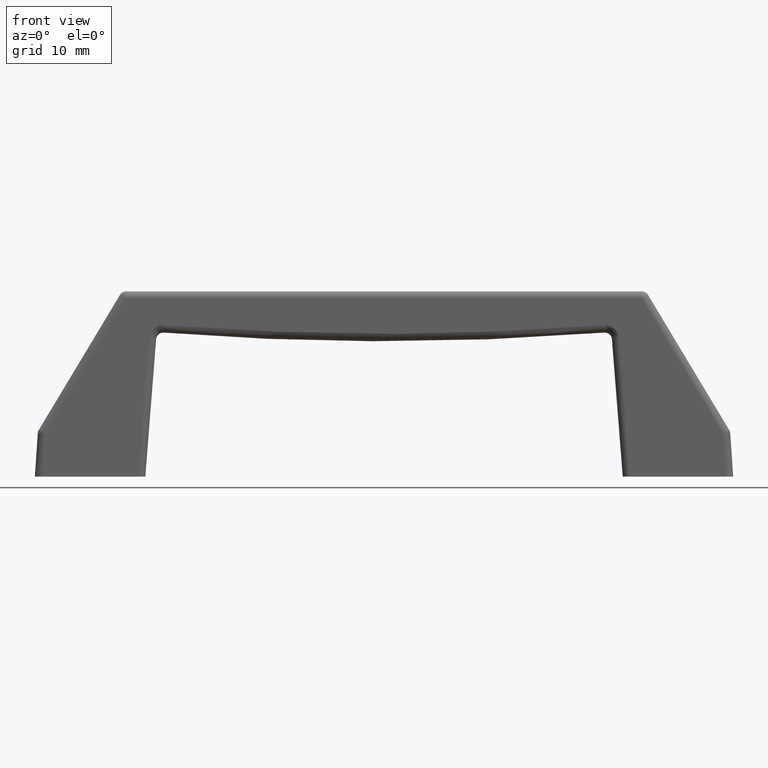
[diagram: clean part render]
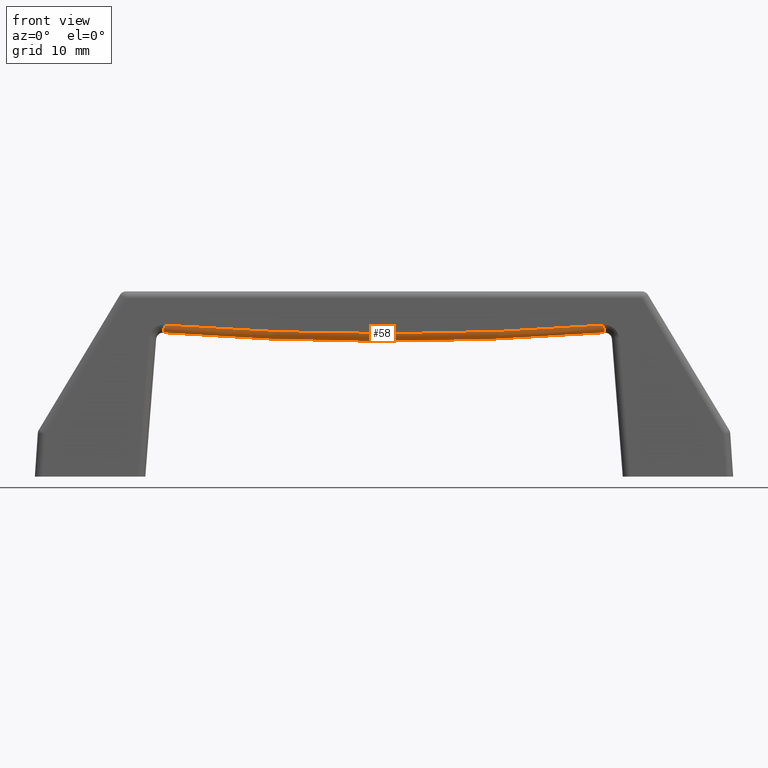
[diagram: same view with one face highlighted and labeled with its STEP entity id]
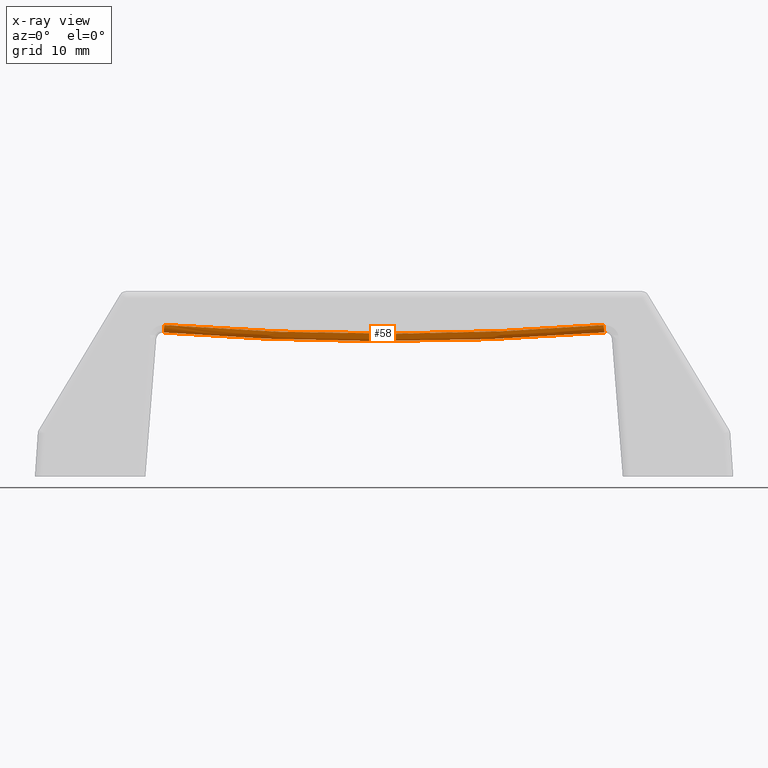
[diagram: x-ray of the same camera — body ghosted, the highlighted face saturated]
A machine part, front view. The second image highlights one B-rep face of the part: STEP entity #58.
The next image is the same camera in x-ray: the body ghosted, the highlighted face saturated — about 0% of this face is hidden behind the body in this view.
In plain terms, the highlighted face is a freeform B-spline surface patch.
Its self-contained STEP definition (entity closure, byte-faithful):
#58=ADVANCED_FACE('',(#301),#300,.T.);
#300=( BOUNDED_SURFACE() B_SPLINE_SURFACE( 3,2,((#1166,#1167,#1168),(#1169,#1170,#1171),(#1172,#1173,#1174),(#1175,#1176,#1177)), .UNSPECIFIED.,.F.,.F.,.F.) B_SPLINE_SURFACE_WITH_KNOTS((4,4),(3,3),(6.20486098314E+00,6.36150963122E+00),(0.00000000000E+00,1.00000000000E+00), .UNSPECIFIED. ) GEOMETRIC_REPRESENTATION_ITEM() RATIONAL_B_SPLINE_SURFACE(((1.00000000000E+00,6.88412846479E-01,1.00000000000E+00),(1.00000000000E+00,6.88335158215E-01,1.00000000000E+00),(1.00000000000E+00,6.88335158215E-01,1.00000000000E+00),(1.00000000000E+00,6.88412846479E-01,1.00000000000E+00))) REPRESENTATION_ITEM('') SURFACE() );
#301=FACE_OUTER_BOUND('',#1178,.T.);
#1166=CARTESIAN_POINT('',(-3.09064850288E+01,-5.88716776104E+00,-5.78901607734E+00));
#1167=CARTESIAN_POINT('',(-3.09107921914E+01,-6.94076949919E+00,-5.78867803020E+00));
#1168=CARTESIAN_POINT('',(-3.08282407629E+01,-6.88579729579E+00,-4.73974590318E+00));
#1169=CARTESIAN_POINT('',(-1.03439453596E+01,-5.97153185651E+00,-7.40286460662E+00));
#1170=CARTESIAN_POINT('',(-1.03430839997E+01,-7.02538083682E+00,-7.40315852888E+00));
#1171=CARTESIAN_POINT('',(-1.03177581511E+01,-6.97016139125E+00,-6.34950874019E+00));
#1172=CARTESIAN_POINT('',(1.03439453596E+01,-5.97153185651E+00,-7.40286460662E+00));
#1173=CARTESIAN_POINT('',(1.03430839997E+01,-7.02538083685E+00,-7.40315852889E+00));
#1174=CARTESIAN_POINT('',(1.03177581511E+01,-6.97016139125E+00,-6.34950874019E+00));
#1175=CARTESIAN_POINT('',(3.09064850288E+01,-5.88716776104E+00,-5.78901607734E+00));
#1176=CARTESIAN_POINT('',(3.09107921914E+01,-6.94076949919E+00,-5.78867803019E+00));
#1177=CARTESIAN_POINT('',(3.08282407629E+01,-6.88579729579E+00,-4.73974590318E+00));
#1178=EDGE_LOOP('',(#1757,#1758,#1759,#1760));
#1757=ORIENTED_EDGE('',*,*,#2120,.T.);
#1758=ORIENTED_EDGE('',*,*,#2121,.F.);
#1759=ORIENTED_EDGE('',*,*,#2117,.F.);
#1760=ORIENTED_EDGE('',*,*,#2122,.F.);
#2117=EDGE_CURVE('',#2683,#2670,#2684,.T.);
#2120=EDGE_CURVE('',#2703,#2704,#2705,.T.);
#2121=EDGE_CURVE('',#2670,#2704,#2711,.T.);
#2122=EDGE_CURVE('',#2703,#2683,#2717,.T.);
#2670=VERTEX_POINT('',#3774);
#2683=VERTEX_POINT('',#3781);
#2684=CIRCLE('',#3785,1.00000000000E+00);
#2703=VERTEX_POINT('',#3794);
#2704=VERTEX_POINT('',#3795);
#2705=CIRCLE('',#3799,1.00000000000E+00);
#2711=(BOUNDED_CURVE() B_SPLINE_CURVE(2,(#3800,#3801,#3802),.UNSPECIFIED.,.F.,.F.) B_SPLINE_CURVE_WITH_KNOTS((3,3),(-7.83243240369E-02,7.83243240369E-02),.UNSPECIFIED.) CURVE() GEOMETRIC_REPRESENTATION_ITEM() RATIONAL_B_SPLINE_CURVE((1.00000000000E+00,9.96934217917E-01,1.00000000000E+00)) REPRESENTATION_ITEM('') );
#2717=(BOUNDED_CURVE() B_SPLINE_CURVE(2,(#3803,#3804,#3805),.UNSPECIFIED.,.F.,.F.) B_SPLINE_CURVE_WITH_KNOTS((3,3),(-7.83243240369E-02,7.83243240369E-02),.UNSPECIFIED.) CURVE() GEOMETRIC_REPRESENTATION_ITEM() RATIONAL_B_SPLINE_CURVE((1.00000000000E+00,9.96934217917E-01,1.00000000000E+00)) REPRESENTATION_ITEM('') );
#3774=CARTESIAN_POINT('',(3.09064850288E+01,-5.88716776104E+00,-5.78901607734E+00));
#3781=CARTESIAN_POINT('',(3.08282407629E+01,-6.88579729579E+00,-4.73974590318E+00));
#3782=CARTESIAN_POINT('',(3.08282407629E+01,-5.88716776104E+00,-4.79208185943E+00));
#3783=DIRECTION('',(9.96925836305E-01,4.10057374183E-03,7.82436080659E-02));
#3784=DIRECTION('',(-7.82442658958E-02,-0.00000000000E+00,9.96934217917E-01));
#3785=AXIS2_PLACEMENT_3D('',#3782,#3783,#3784);
#3794=CARTESIAN_POINT('',(-3.08282407629E+01,-6.88579729579E+00,-4.73974590318E+00));
#3795=CARTESIAN_POINT('',(-3.09064850288E+01,-5.88716776104E+00,-5.78901607734E+00));
#3796=CARTESIAN_POINT('',(-3.08282407629E+01,-5.88716776104E+00,-4.79208185943E+00));
#3797=DIRECTION('',(9.96925836305E-01,-4.10057374183E-03,-7.82436080659E-02));
#3798=DIRECTION('',(7.82442658958E-02,-0.00000000000E+00,9.96934217917E-01));
#3799=AXIS2_PLACEMENT_3D('',#3796,#3797,#3798);
#3800=CARTESIAN_POINT('',(3.09064850288E+01,-5.88716776104E+00,-5.78901607734E+00));
#3801=CARTESIAN_POINT('',(-4.76063632959E-13,-6.01397104968E+00,-8.21470795253E+00));
#3802=CARTESIAN_POINT('',(-3.09064850288E+01,-5.88716776104E+00,-5.78901607734E+00));
#3803=CARTESIAN_POINT('',(-3.08282407629E+01,-6.88579729579E+00,-4.73974590318E+00));
#3804=CARTESIAN_POINT('',(-1.90070181816E-13,-7.01260058444E+00,-7.15929678628E+00));
#3805=CARTESIAN_POINT('',(3.08282407629E+01,-6.88579729579E+00,-4.73974590318E+00));